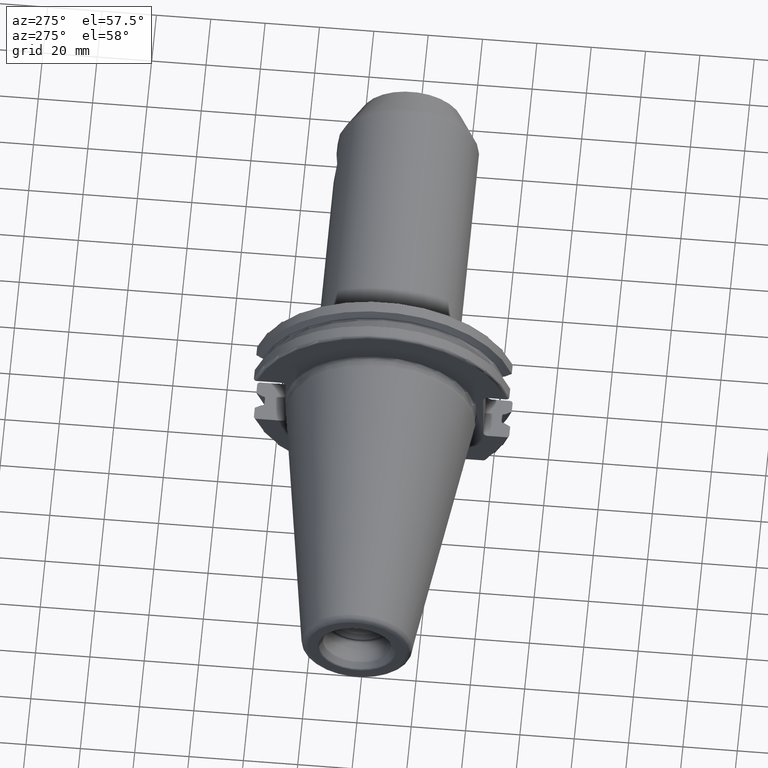
[diagram: clean part render]
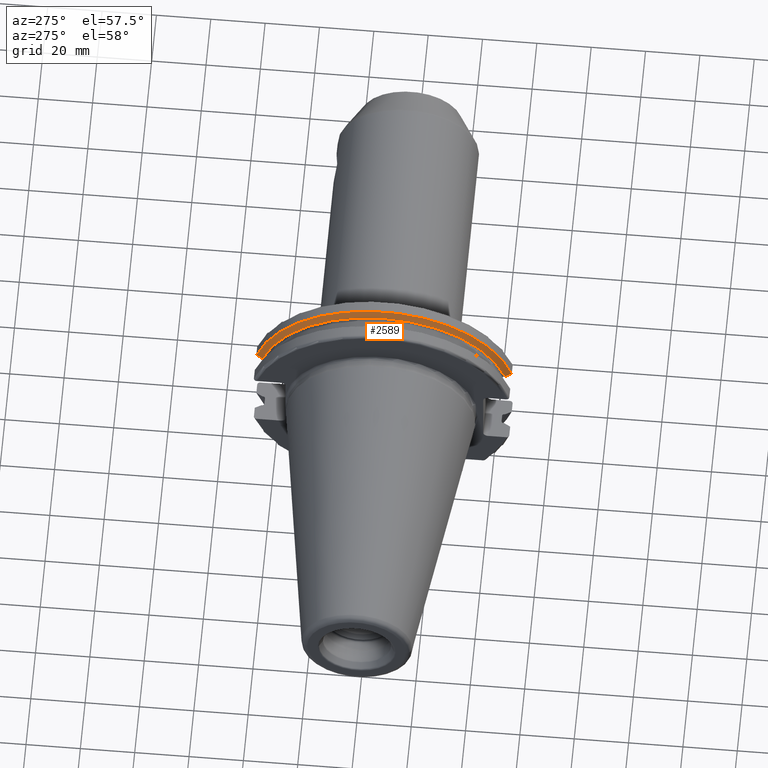
[diagram: same view with one face highlighted and labeled with its STEP entity id]
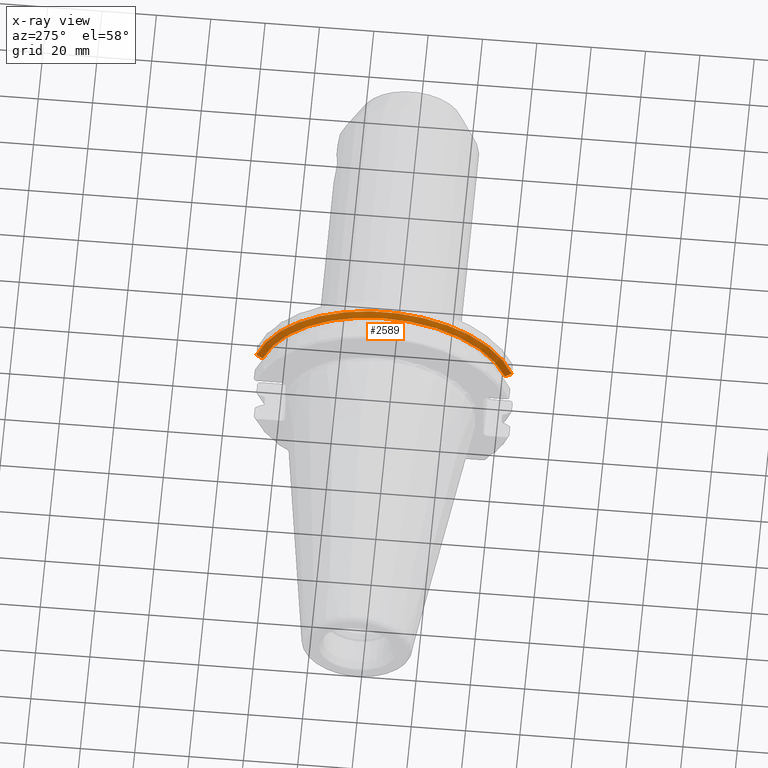
[diagram: x-ray of the same camera — body ghosted, the highlighted face saturated]
A machine part, auxiliary view. The second image highlights one B-rep face of the part: STEP entity #2589.
The next image is the same camera in x-ray: the body ghosted, the highlighted face saturated — about 0% of this face is hidden behind the body in this view.
In plain terms, the highlighted conical surface has half-angle 60 deg.
Its self-contained STEP definition (entity closure, byte-faithful):
#735=CARTESIAN_POINT('',(1.441537838583E1,4.699929686974E1,1.29E1));
#736=CARTESIAN_POINT('',(1.426451908496E1,4.672833723043E1,1.29E1));
#737=CARTESIAN_POINT('',(1.396501135619E1,4.619006057421E1,1.29E1));
#738=CARTESIAN_POINT('',(1.352242021955E1,4.539363402665E1,1.29E1));
#739=CARTESIAN_POINT('',(1.323173924582E1,4.486988275438E1,1.29E1));
#740=CARTESIAN_POINT('',(1.30875E1,4.460981716077E1,1.29E1));
#742=CARTESIAN_POINT('',(1.30875E1,-4.460981716077E1,1.29E1));
#743=CARTESIAN_POINT('',(1.323171622645E1,-4.486984125009E1,1.29E1));
#744=CARTESIAN_POINT('',(1.352236645045E1,-4.539353719098E1,1.29E1));
#745=CARTESIAN_POINT('',(1.396495664446E1,-4.618996220278E1,1.29E1));
#746=CARTESIAN_POINT('',(1.426449561388E1,-4.672829507383E1,1.29E1));
#747=CARTESIAN_POINT('',(1.441537838583E1,-4.699929686974E1,1.29E1));
#749=CARTESIAN_POINT('',(1.30875E1,0.E0,0.E0));
#750=DIRECTION('',(1.E0,0.E0,0.E0));
#751=DIRECTION('',(0.E0,9.606411165078E-1,2.777924499957E-1));
#752=AXIS2_PLACEMENT_3D('',#749,#750,#751);
#780=CARTESIAN_POINT('',(1.441537838583E1,0.E0,0.E0));
#781=DIRECTION('',(1.E0,0.E0,0.E0));
#782=DIRECTION('',(0.E0,9.643354064066E-1,2.646832521159E-1));
#783=AXIS2_PLACEMENT_3D('',#780,#781,#782);
#1548=CARTESIAN_POINT('',(1.30875E1,4.460981716077E1,1.29E1));
#1549=VERTEX_POINT('',#1548);
#1558=CARTESIAN_POINT('',(1.30875E1,-4.460981716077E1,1.29E1));
#1559=VERTEX_POINT('',#1558);
#1560=VERTEX_POINT('',#735);
#1561=VERTEX_POINT('',#747);
#2577=CARTESIAN_POINT('',(1.375143919291E1,0.E0,0.E0));
#2578=DIRECTION('',(1.E0,0.E0,0.E0));
#2579=DIRECTION('',(0.E0,-1.E0,0.E0));
#2580=AXIS2_PLACEMENT_3D('',#2577,#2578,#2579);
#2581=CONICAL_SURFACE('',#2580,4.758752358474E1,6.E1);
#2582=ORIENTED_EDGE('',*,*,#2047,.F.);
#2584=ORIENTED_EDGE('',*,*,#2583,.T.);
#2585=ORIENTED_EDGE('',*,*,#2109,.F.);
#2586=ORIENTED_EDGE('',*,*,#2542,.F.);
#2587=EDGE_LOOP('',(#2582,#2584,#2585,#2586));
#2588=FACE_OUTER_BOUND('',#2587,.F.);
#2589=ADVANCED_FACE('',(#2588),#2581,.T.);
#741=B_SPLINE_CURVE_WITH_KNOTS('',3,(#735,#736,#737,#738,#739,#740),
.UNSPECIFIED.,.F.,.F.,(4,1,1,4),(0.E0,3.333333333333E-1,6.666666666667E-1,1.E0),
.UNSPECIFIED.);
#748=B_SPLINE_CURVE_WITH_KNOTS('',3,(#742,#743,#744,#745,#746,#747),
.UNSPECIFIED.,.F.,.F.,(4,1,1,4),(0.E0,3.333333333333E-1,6.666666666667E-1,1.E0),
.UNSPECIFIED.);
#753=CIRCLE('',#752,4.643754716948E1);
#784=CIRCLE('',#783,4.87375E1);
#2047=EDGE_CURVE('',#1560,#1549,#741,.T.);
#2109=EDGE_CURVE('',#1559,#1561,#748,.T.);
#2542=EDGE_CURVE('',#1549,#1559,#753,.T.);
#2583=EDGE_CURVE('',#1560,#1561,#784,.T.);